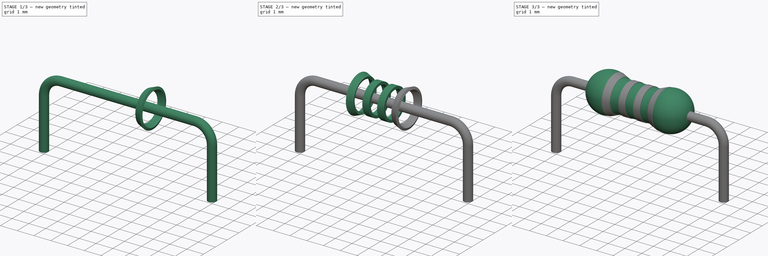
[diagram: build sequence overview — one tinted view per stage of 3, left to right]
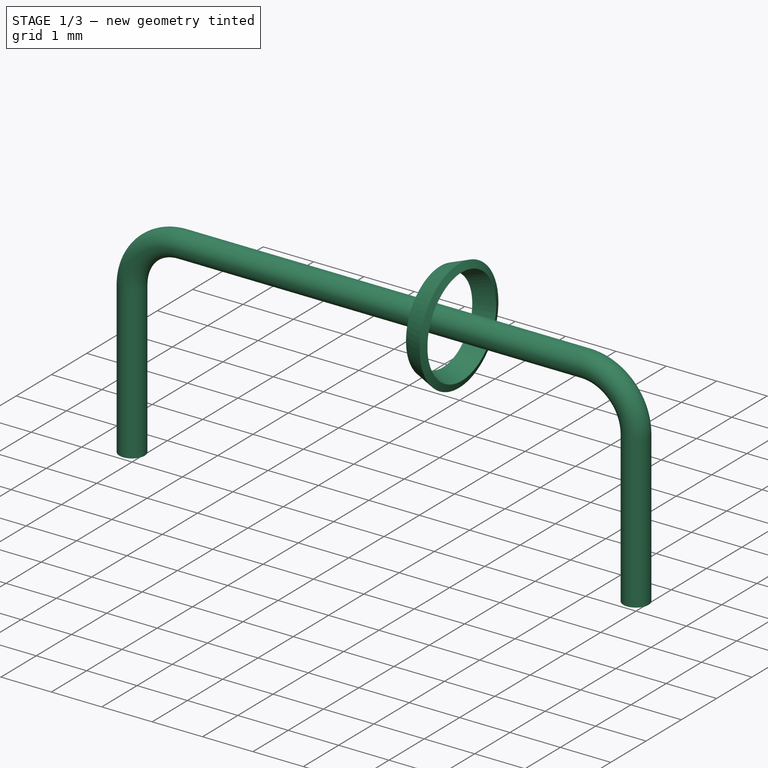
[diagram: stage 1 of 3 — iso view after this stage's code; geometry added in this stage tinted green]
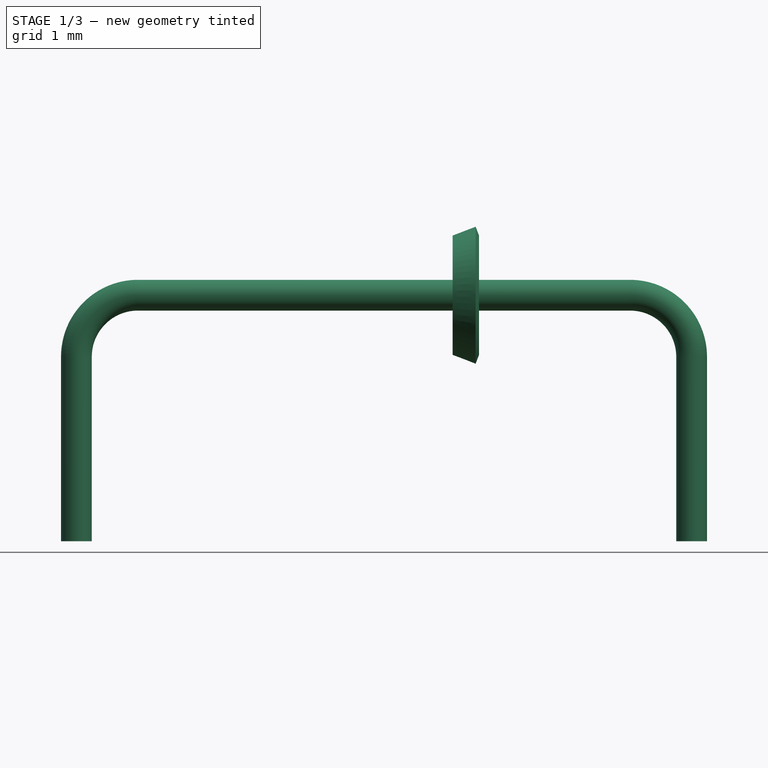
[diagram: stage 1 of 3 — front view after this stage's code; geometry added in this stage tinted green]
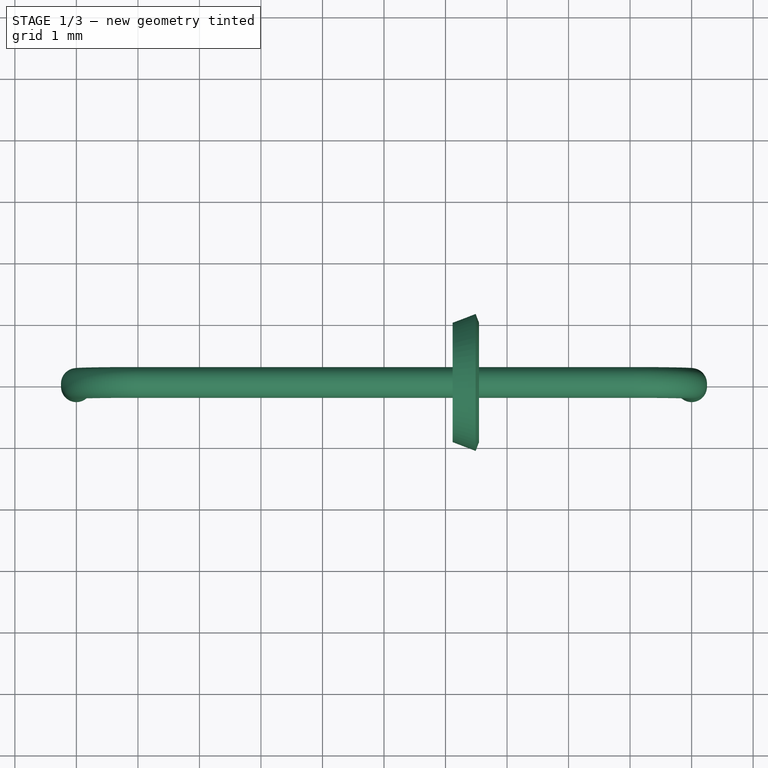
[diagram: stage 1 of 3 — top view after this stage's code; geometry added in this stage tinted green]
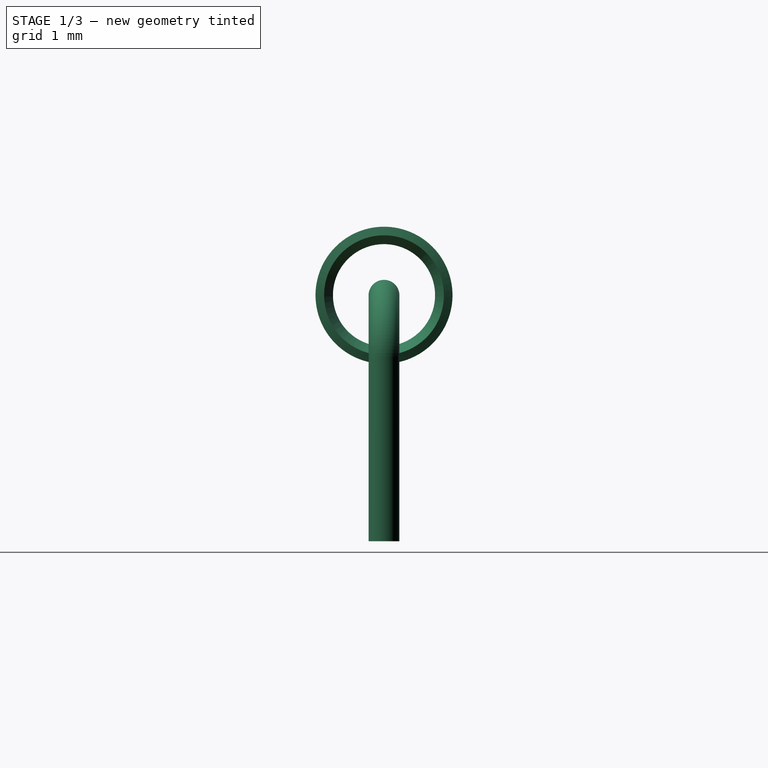
[diagram: stage 1 of 3 — right view after this stage's code; geometry added in this stage tinted green]
FCSTD DOCUMENT  (FreeCAD 0.18.4R)
Label: res-1_4w-1K
License: All rights reserved
LicenseURL: http://en.wikipedia.org/wiki/All_rights_reserved
objects: Sketcher::SketchObject×7, PartDesign::Body×6, PartDesign::Revolution×5, PartDesign::Mirrored×1, PartDesign::Plane×1, PartDesign::AdditivePipe×1, App::Part×1
note: 27 computed .brp shape members not serialized (recipe doc carries the construction recipe); baked Part::Feature solids carry a one-line shape summary decoded from their .brp

FEATURE [PartDesign::Body] Body003  label="Ring-3"
  Group = -> [Sketch003,Revolution003]
  Origin = -> Origin003
  Tip = -> Revolution003
FEATURE [Sketcher::SketchObject] Sketch004
  MapMode = 5
  Placement = pos=(0,0,0) rot=(1,0,0;1.5708rad)
  Support = -> [XZ_Plane004]
  sketch-geometry (4):
    g0: LineSegment StartX=1.11624 StartY=0.970037 StartZ=0 EndX=1.17 EndY=0.83 EndZ=0
    g1: LineSegment StartX=1.17 StartY=0.83 StartZ=0 EndX=1.54343 EndY=0.973347 EndZ=0
    g2: LineSegment StartX=1.54343 StartY=0.973347 StartZ=0 EndX=1.48968 EndY=1.11338 EndZ=0
    g3: LineSegment StartX=1.48968 StartY=1.11338 StartZ=0 EndX=1.11624 EndY=0.970037 EndZ=0
  constraints (12):
    c: Coincident(g0,g1)
    c: Coincident(g1,g2)
    c: Coincident(g2,g3)
    c: Coincident(g3,g0)
    c: Distance(g3) = 0.4
    c: Distance(g2) = 0.15
    c: Perpendicular(g2,g3)
    c: Perpendicular(g2,g1)
    c: Perpendicular(g0,g1)
    c: DistanceY(g-1,g0) = 0.83
    c: Angle(g-1,g1) = 0.366519
    c: DistanceX(g-1,g0) = 1.17
FEATURE [PartDesign::Revolution] Revolution004
  Angle = 360
  Axis = (1,0,0)
  Base = (0,0,0)
  Placement = pos=(0,0,0) rot=(1,0,0;1.5708rad)
  Profile = -> Sketch004
  ReferenceAxis = -> X_Axis004
  Refine = true
FEATURE [PartDesign::Body] Body004  label="Ring-4"
  Group = -> [Sketch004,Revolution004]
  Origin = -> Origin004
  Tip = -> Revolution004
FEATURE [Sketcher::SketchObject] Sketch005  label="pin-path"
  MapMode = 3
  Placement = pos=(0,0,0) rot=(1,0,0;1.5708rad)
  Support = -> [XY_Plane005]
  sketch-geometry (6):
    g0: LineSegment StartX=-5 StartY=-4 StartZ=0 EndX=-5 EndY=-1 EndZ=0
    g1: LineSegment StartX=-4 StartY=0 StartZ=0 EndX=4 EndY=0 EndZ=0
    g2: LineSegment StartX=5 StartY=-1 StartZ=0 EndX=5 EndY=-4 EndZ=0
    g3: ArcOfCircle CenterX=-4 CenterY=-1 CenterZ=0 NormalX=0 NormalY=0 NormalZ=1 AngleXU=0 Radius=1 StartAngle=1.5708 EndAngle=3.14159
    g4: ArcOfCircle CenterX=4 CenterY=-1 CenterZ=0 NormalX=0 NormalY=0 NormalZ=1 AngleXU=0 Radius=1 StartAngle=0 EndAngle=1.5708
    g5: LineSegment [constr] StartX=-4 StartY=-1 StartZ=0 EndX=4 EndY=-1 EndZ=0
  constraints (15):
    c: Horizontal(g1)
    c: Vertical(g0)
    c: Symmetric(g0,g2,g-2)
    c: PointOnObject(g-1,g1)
    c: Tangent(g0,g3) = 1.5708
    c: Tangent(g1,g3) = 1.5708
    c: Tangent(g1,g4) = 1.5708
    c: Tangent(g2,g4) = 1.5708
    c: Radius(g3) = 1
    c: DistanceX(g0,g2) = 10
    c: Coincident(g4,g5)
    c: Horizontal(g5)
    c: Coincident(g5,g3)
    c: Symmetric(g2,g0,g-2)
    c: DistanceY(g2,g1) = 4
FEATURE [PartDesign::Plane] DatumPlane  label="Pin-ground"
  Length = 24
  MapMode = 7
  Placement = pos=(-5,-9e-16,-4) rot=(0,1,0;3.14159rad)
  ResizeMode = 0
  Support = -> [Sketch005]
  Width = 24
FEATURE [Sketcher::SketchObject] Sketch006  label="pin-section"
  MapMode = 5
  Placement = pos=(-5,-9e-16,-4) rot=(0,1,0;3.14159rad)
  Support = -> [DatumPlane]
  sketch-geometry (1):
    g0: Circle CenterX=0 CenterY=0 CenterZ=0 NormalX=0 NormalY=0 NormalZ=1 AngleXU=0 Radius=0.25
  constraints (2):
    c: Coincident(g0,g-1)
    c: Radius(g0) = 0.25
FEATURE [PartDesign::AdditivePipe] AdditivePipe
  AuxilleryCurvelinear = true
  AuxillerySpineTangent = false
  Binormal = (0,0,0)
  Mode = 0
  Placement = pos=(-5,-1e-15,-4) rot=(0,1,0;3.14159rad)
  Profile = -> Sketch006
  Refine = true
  Spine = -> Sketch005
  SpineTangent = false
  Transformation = 0
  Transition = 0
FEATURE [PartDesign::Body] Body005  label="pins"
  Group = -> [Sketch005,DatumPlane,Sketch006,AdditivePipe]
  Origin = -> Origin005
  Tip = -> AdditivePipe
FEATURE [App::Part] Part  label="Resistor-1_4w-220ohm"
  Group = -> [Body,Body002,Body001,Body003,Body004,Body005]
  License = CC BY 3.0
  LicenseURL = http://creativecommons.org/licenses/by/3.0/
  Origin = -> Origin006
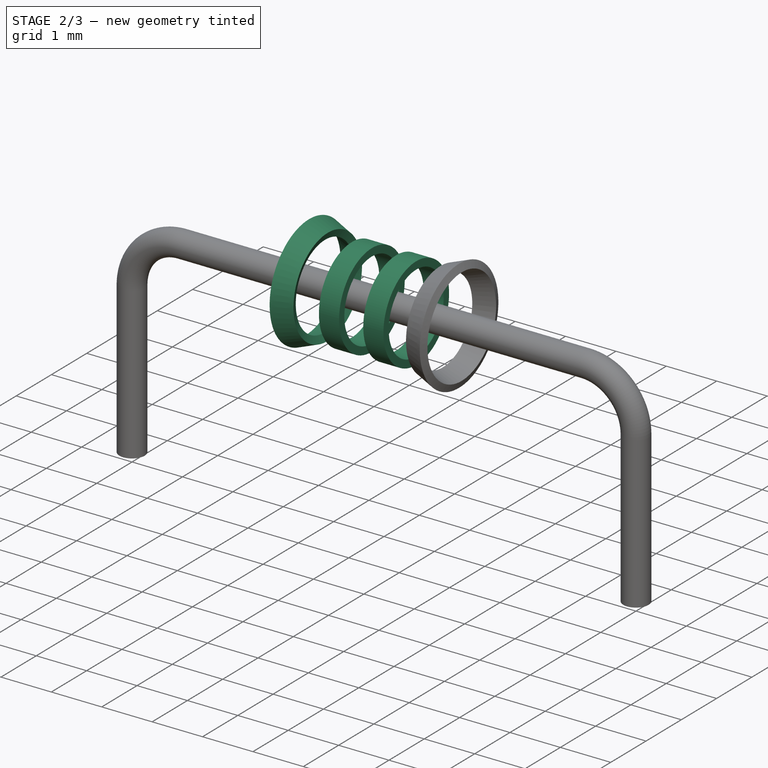
[diagram: stage 2 of 3 — iso view after this stage's code; geometry added in this stage tinted green]
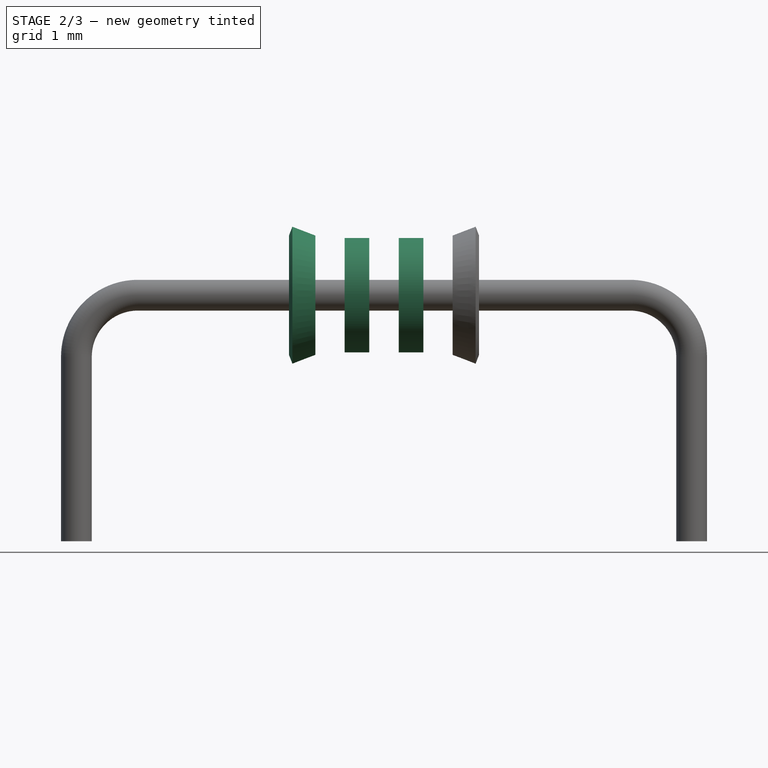
[diagram: stage 2 of 3 — front view after this stage's code; geometry added in this stage tinted green]
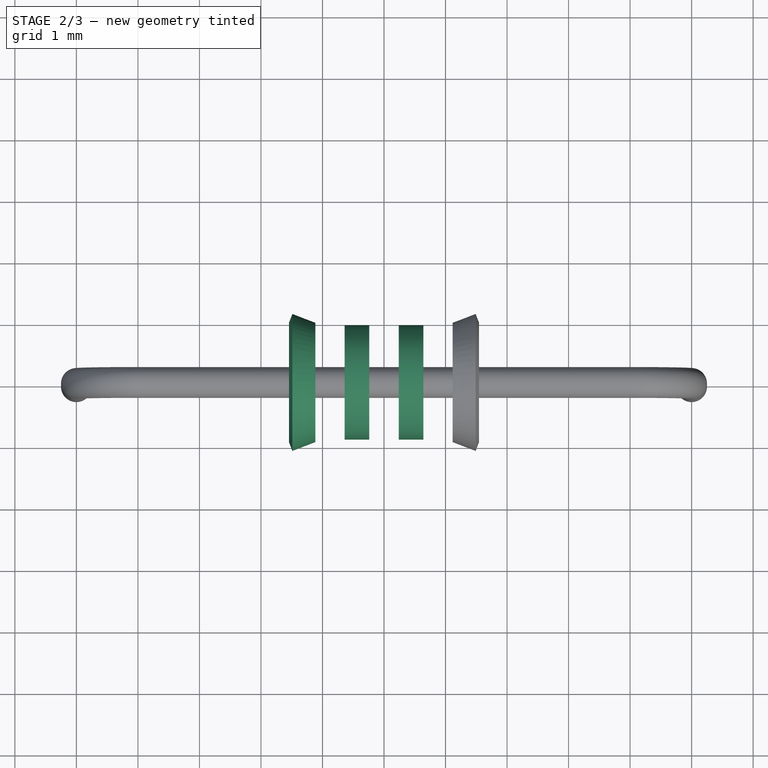
[diagram: stage 2 of 3 — top view after this stage's code; geometry added in this stage tinted green]
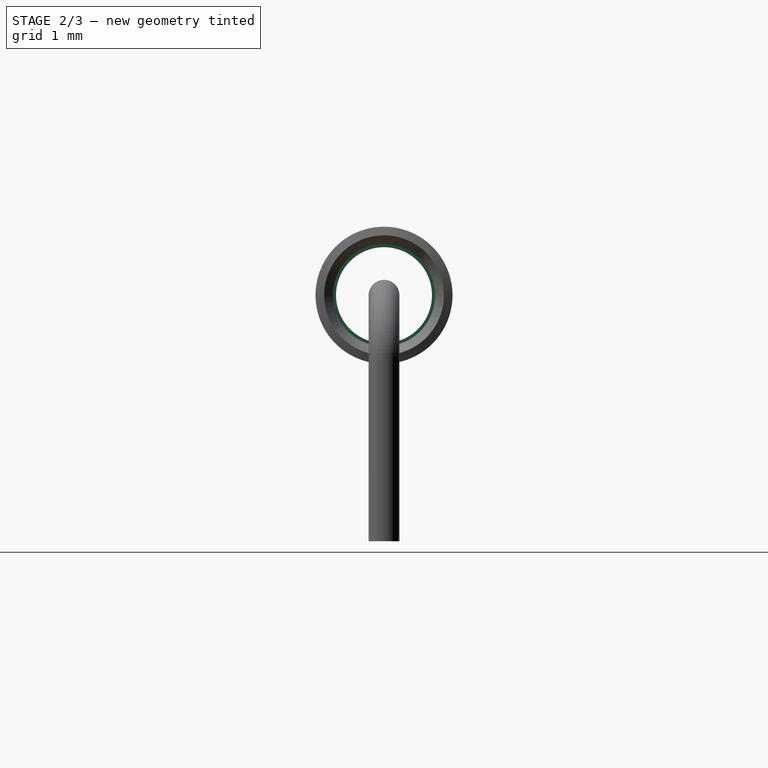
[diagram: stage 2 of 3 — right view after this stage's code; geometry added in this stage tinted green]
FEATURE [PartDesign::Body] Body  label="Resistor-body"
  Group = -> [Sketch,Revolution,Mirrored]
  Origin = -> Origin
  Tip = -> Mirrored
FEATURE [Sketcher::SketchObject] Sketch001
  MapMode = 5
  Placement = pos=(0,0,0) rot=(1,0,0;1.5708rad)
  Support = -> [XZ_Plane001]
  sketch-geometry (4):
    g0: LineSegment StartX=-0.64 StartY=0.78 StartZ=0 EndX=-0.24 EndY=0.78 EndZ=0
    g1: LineSegment StartX=-0.24 StartY=0.78 StartZ=0 EndX=-0.24 EndY=0.93 EndZ=0
    g2: LineSegment StartX=-0.24 StartY=0.93 StartZ=0 EndX=-0.64 EndY=0.93 EndZ=0
    g3: LineSegment StartX=-0.64 StartY=0.93 StartZ=0 EndX=-0.64 EndY=0.78 EndZ=0
  constraints (12):
    c: Horizontal(g0)
    c: Vertical(g1)
    c: Horizontal(g2)
    c: Vertical(g3)
    c: Coincident(g0,g3)
    c: Coincident(g1,g0)
    c: Coincident(g2,g3)
    c: Coincident(g1,g2)
    c: DistanceX(g0) = -0.24
    c: DistanceY(g0) = 0.78
    c: DistanceY(g3,g3) = 0.15
    c: DistanceX(g2,g2) = 0.4
FEATURE [PartDesign::Revolution] Revolution001
  Angle = 360
  Axis = (1,0,0)
  Base = (0,0,0)
  Placement = pos=(0,0,0) rot=(1,0,0;1.5708rad)
  Profile = -> Sketch001
  ReferenceAxis = -> Sketch001 [H_Axis]
  Refine = true
FEATURE [PartDesign::Body] Body001  label="Ring-2"
  Group = -> [Sketch001,Revolution001]
  Origin = -> Origin001
  Tip = -> Revolution001
FEATURE [Sketcher::SketchObject] Sketch002
  MapMode = 5
  Placement = pos=(0,0,0) rot=(1,0,0;1.5708rad)
  Support = -> [XZ_Plane002]
  sketch-geometry (4):
    g0: LineSegment StartX=-1.48968 StartY=1.11338 StartZ=0 EndX=-1.54343 EndY=0.973347 EndZ=0
    g1: LineSegment StartX=-1.54343 StartY=0.973347 StartZ=0 EndX=-1.17 EndY=0.83 EndZ=0
    g2: LineSegment StartX=-1.17 StartY=0.83 StartZ=0 EndX=-1.11624 EndY=0.970037 EndZ=0
    g3: LineSegment StartX=-1.11624 StartY=0.970037 StartZ=0 EndX=-1.48968 EndY=1.11338 EndZ=0
  constraints (12):
    c: Coincident(g0,g1)
    c: Coincident(g1,g2)
    c: Coincident(g2,g3)
    c: Coincident(g3,g0)
    c: Distance(g3) = 0.4
    c: Distance(g2) = 0.15
    c: Perpendicular(g2,g3)
    c: Perpendicular(g2,g1)
    c: Perpendicular(g0,g1)
    c: DistanceX(g1) = -1.17
    c: DistanceY(g1) = 0.83
    c: Angle(g3,g-1) = 0.366519
FEATURE [PartDesign::Revolution] Revolution002
  Angle = 360
  Axis = (1,0,0)
  Base = (0,0,0)
  Placement = pos=(0,0,0) rot=(1,0,0;1.5708rad)
  Profile = -> Sketch002
  ReferenceAxis = -> X_Axis002
  Refine = true
FEATURE [PartDesign::Body] Body002  label="Ring-1"
  Group = -> [Sketch002,Revolution002]
  Origin = -> Origin002
  Tip = -> Revolution002
FEATURE [Sketcher::SketchObject] Sketch003
  MapMode = 5
  Placement = pos=(0,0,0) rot=(1,0,0;1.5708rad)
  Support = -> [XZ_Plane003]
  sketch-geometry (4):
    g0: LineSegment StartX=0.24 StartY=0.78 StartZ=0 EndX=0.64 EndY=0.78 EndZ=0
    g1: LineSegment StartX=0.64 StartY=0.78 StartZ=0 EndX=0.64 EndY=0.93 EndZ=0
    g2: LineSegment StartX=0.64 StartY=0.93 StartZ=0 EndX=0.24 EndY=0.93 EndZ=0
    g3: LineSegment StartX=0.24 StartY=0.93 StartZ=0 EndX=0.24 EndY=0.78 EndZ=0
  constraints (12):
    c: Horizontal(g0)
    c: Vertical(g1)
    c: Horizontal(g2)
    c: Vertical(g3)
    c: Coincident(g0,g3)
    c: Coincident(g1,g0)
    c: Coincident(g2,g3)
    c: Coincident(g1,g2)
    c: DistanceY(g0) = 0.78
    c: DistanceY(g3,g3) = 0.15
    c: DistanceX(g2,g2) = 0.4
    c: DistanceX(g-1,g0) = 0.24
FEATURE [PartDesign::Revolution] Revolution003
  Angle = 360
  Axis = (1,0,0)
  Base = (0,0,0)
  Placement = pos=(0,0,0) rot=(1,0,0;1.5708rad)
  Profile = -> Sketch003
  ReferenceAxis = -> Sketch003 [H_Axis]
  Refine = true
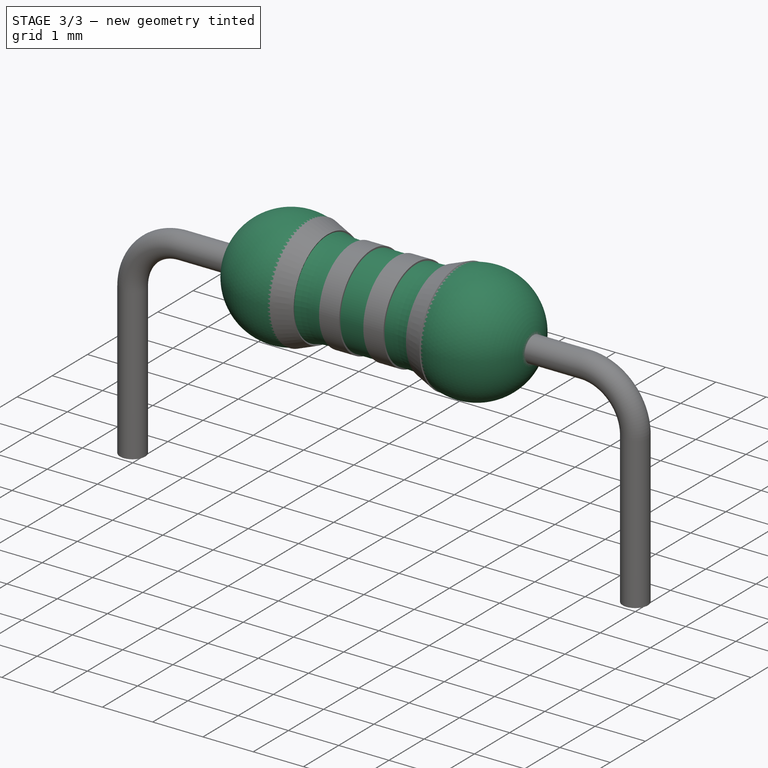
[diagram: stage 3 of 3 — iso view after this stage's code; geometry added in this stage tinted green]
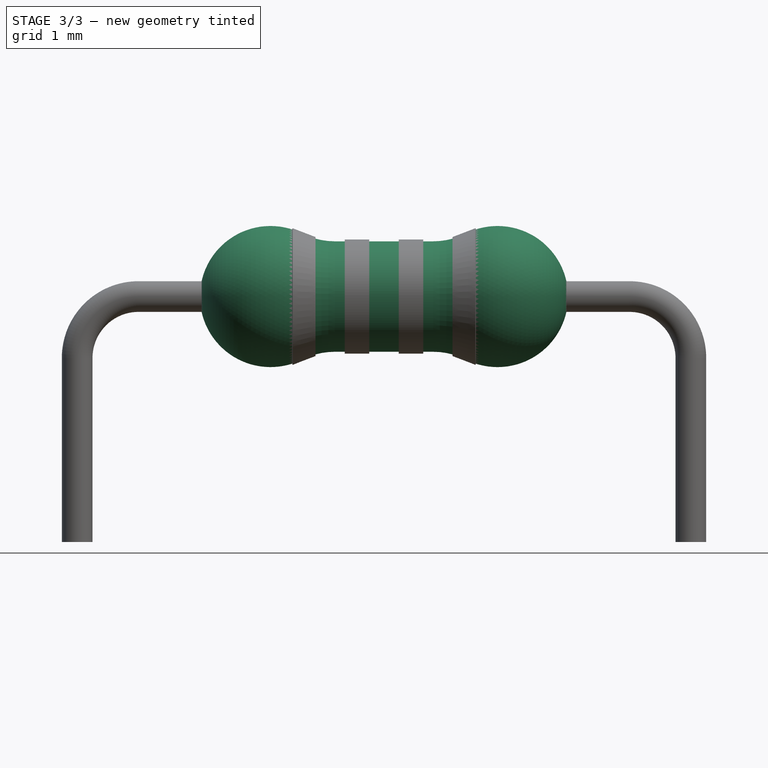
[diagram: stage 3 of 3 — front view after this stage's code; geometry added in this stage tinted green]
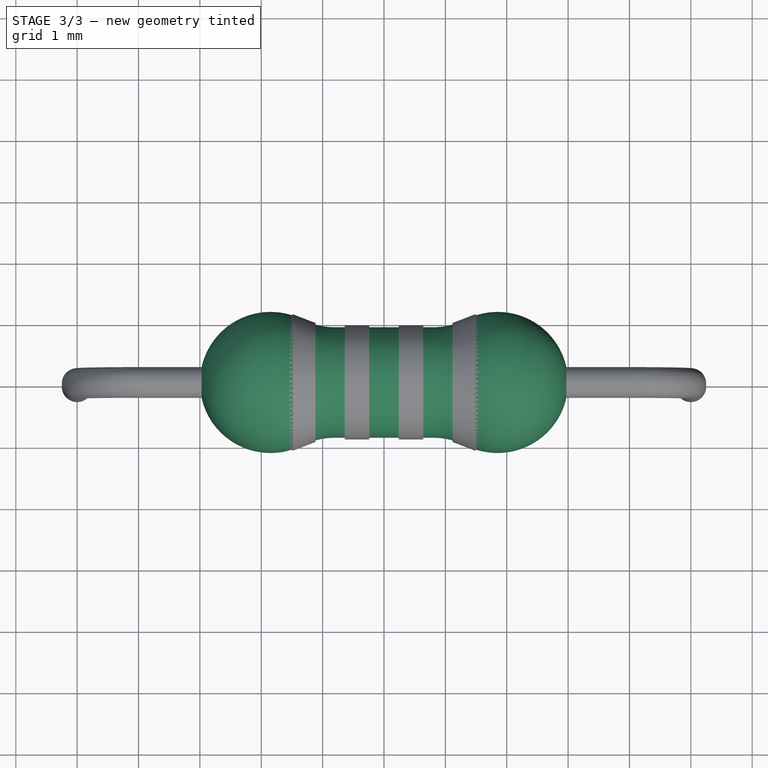
[diagram: stage 3 of 3 — top view after this stage's code; geometry added in this stage tinted green]
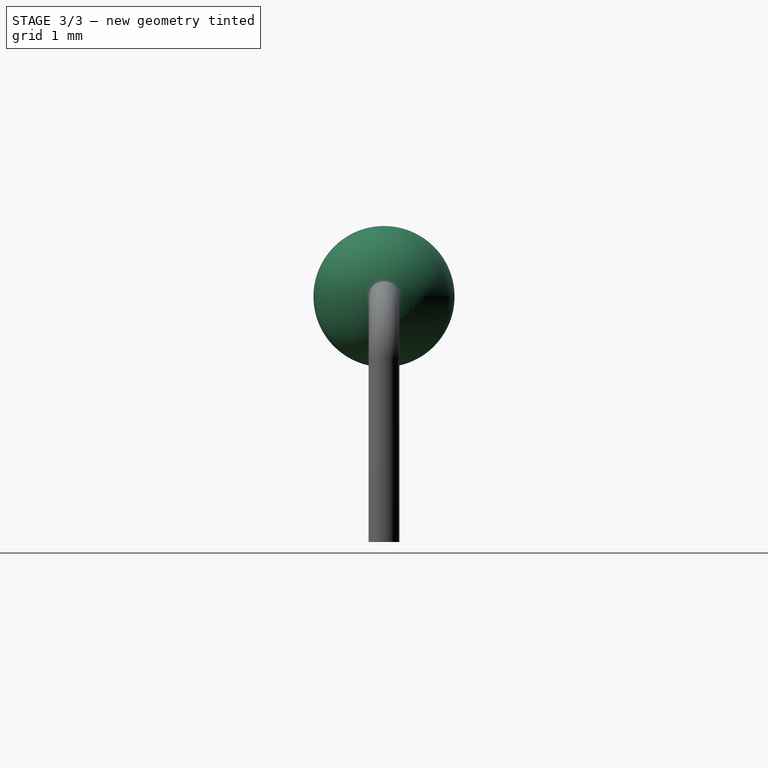
[diagram: stage 3 of 3 — right view after this stage's code; geometry added in this stage tinted green]
FEATURE [Sketcher::SketchObject] Sketch
  MapMode = 5
  Support = -> [XY_Plane]
  sketch-geometry (8):
    g0: LineSegment [constr] StartX=-1.84996 StartY=0 StartZ=0 EndX=-1.84996 EndY=1.15 EndZ=0
    g1: LineSegment StartX=0 StartY=0.9 StartZ=0 EndX=0 EndY=0 EndZ=0
    g2: LineSegment StartX=-0.8 StartY=0.9 StartZ=0 EndX=0 EndY=0.9 EndZ=0
    g3: ArcOfCircle CenterX=-0.8 CenterY=2.08 CenterZ=0 NormalX=0 NormalY=0 NormalZ=1 AngleXU=0 Radius=1.18 StartAngle=4.24859 EndAngle=4.71239
    g4: ArcOfCircle CenterX=-1.84996 CenterY=0 CenterZ=0 NormalX=0 NormalY=0 NormalZ=1 AngleXU=0 Radius=1.15 StartAngle=1.09956 EndAngle=3.14159
    g5: LineSegment [constr] StartX=-0.8 StartY=2.08 StartZ=0 EndX=-0.8 EndY=0.9 EndZ=0
    g6: LineSegment [constr] StartX=-1.32788 StartY=1.02466 StartZ=0 EndX=-1.84996 EndY=0 EndZ=0
    g7: LineSegment StartX=-2.99996 StartY=0 StartZ=0 EndX=0 EndY=0 EndZ=0
  constraints (26):
    c: PointOnObject(g0,g-1)
    c: Vertical(g0)
    c: DistanceY(g0) = 1.15
    c: PointOnObject(g1,g-1)
    c: Vertical(g1)
    c: DistanceY(g1) = -0.9
    c: PointOnObject(g1,g-2)
    c: PointOnObject(g1,g2)
    c: DistanceX(g2) = 0.8
    c: Coincident(g3,g2)
    c: Coincident(g4,g3)
    c: PointOnObject(g0,g4)
    c: PointOnObject(g4,g0)
    c: Coincident(g0,g4)
    c: Radius(g3) = 1.18
    c: Vertical(g5)
    c: Coincident(g5,g2)
    c: Coincident(g5,g3)
    c: Horizontal(g2)
    c: Coincident(g2,g1)
    c: Coincident(g6,g3)
    c: Coincident(g6,g0)
    c: Angle(g6,g0) = 0.471239
    c: Horizontal(g7)
    c: Coincident(g7,g-1)
    c: Coincident(g7,g4)
FEATURE [PartDesign::Revolution] Revolution
  Angle = 360
  Axis = (1,0,0)
  Base = (0,0,0)
  Profile = -> Sketch
  ReferenceAxis = -> Sketch [H_Axis]
  Refine = true
FEATURE [PartDesign::Mirrored] Mirrored
  BaseFeature = -> Revolution
  MirrorPlane = -> YZ_Plane
  Originals = -> [Revolution]
  Refine = true
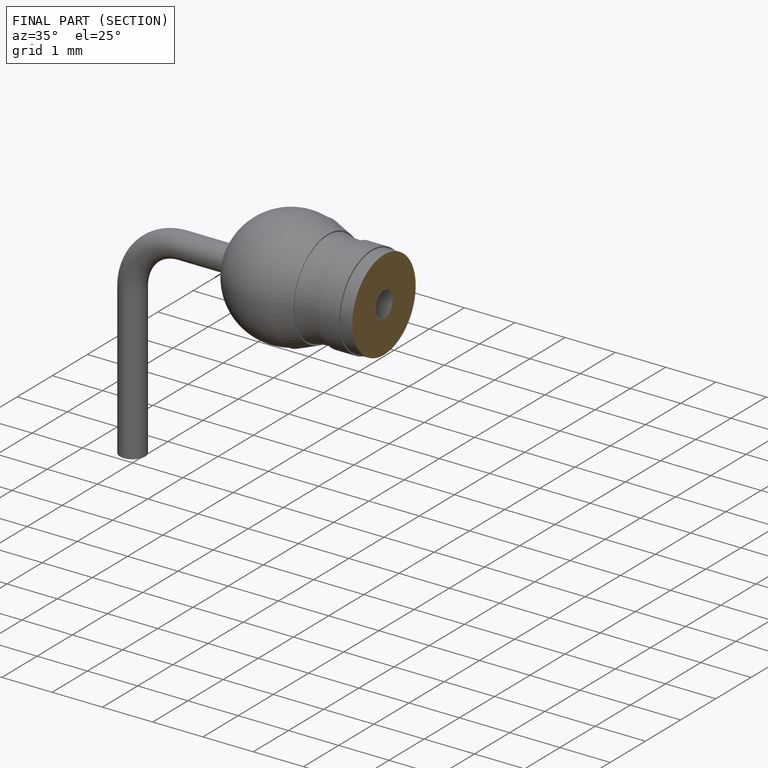
[diagram: finished part — half-section view (interior)]
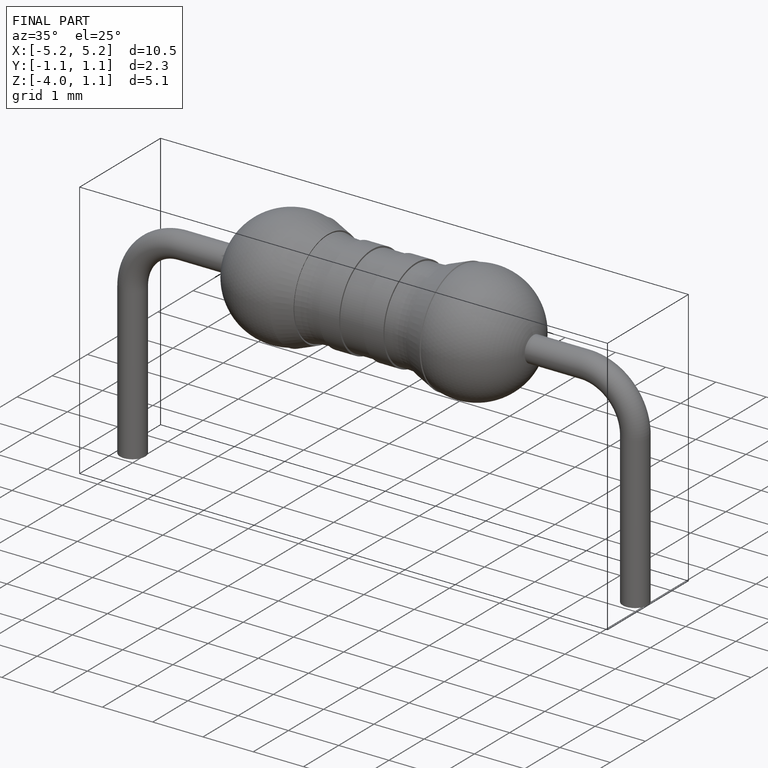
[diagram: finished part — iso view with bounding-box wireframe]
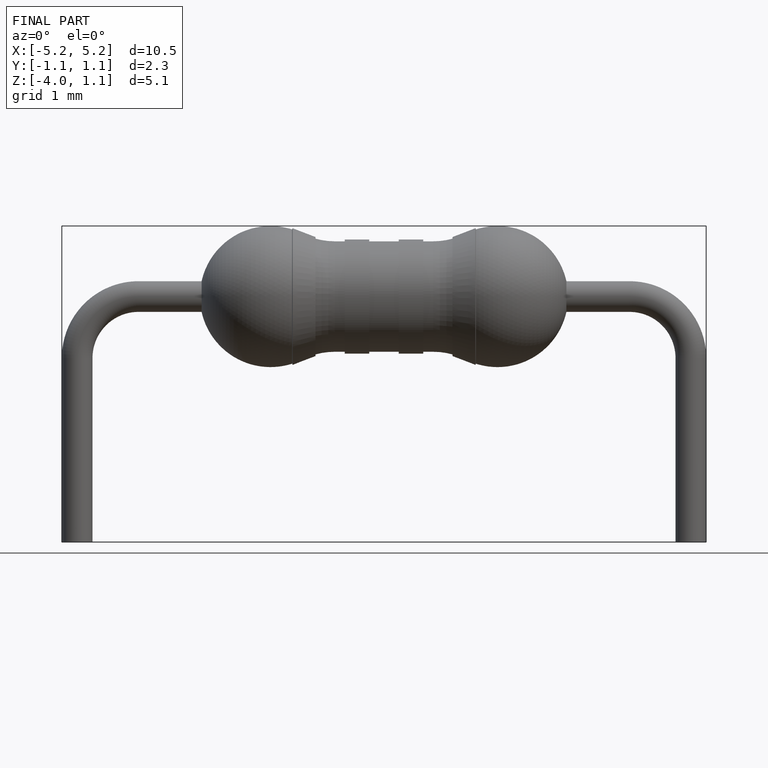
[diagram: finished part — front view with bounding-box wireframe]
